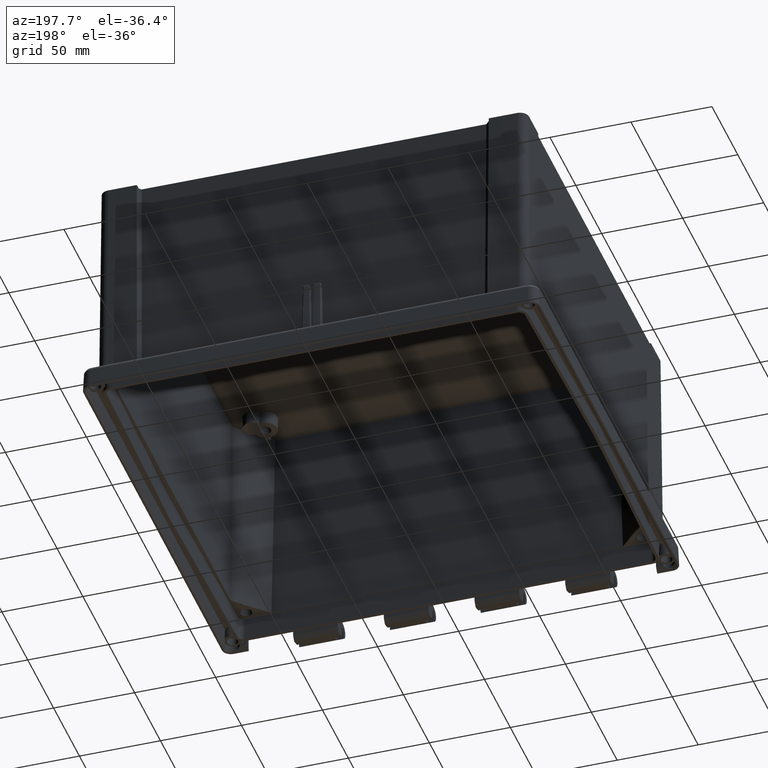
[diagram: clean part render]
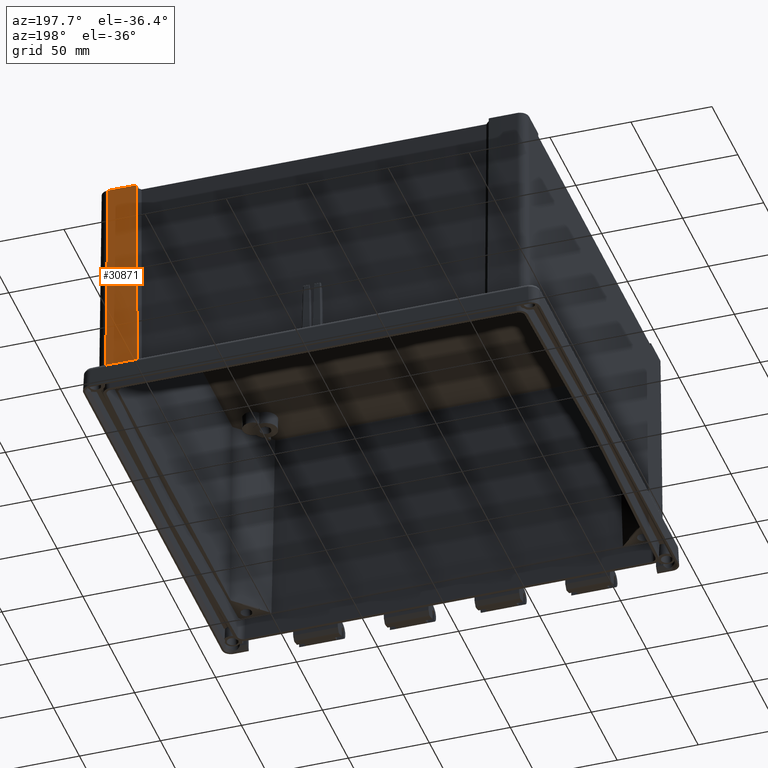
[diagram: same view with one face highlighted and labeled with its STEP entity id]
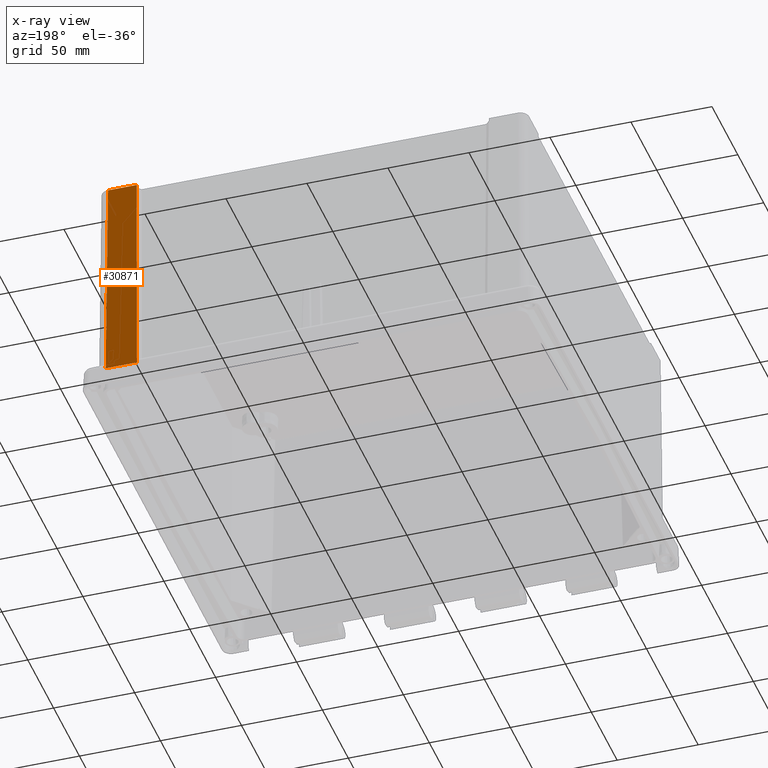
[diagram: x-ray of the same camera — body ghosted, the highlighted face saturated]
A machine part, auxiliary view. The second image highlights one B-rep face of the part: STEP entity #30871.
The next image is the same camera in x-ray: the body ghosted, the highlighted face saturated — about 0% of this face is hidden behind the body in this view.
In plain terms, the highlighted planar face has unit normal (0, -1, -0.0087).
Its self-contained STEP definition (entity closure, byte-faithful):
#17045 = CARTESIAN_POINT ( 'NONE',  ( 126.3032684426439700, 132.2180590194969100, 145.7500000000000000 ) ) ;
#17046 = DIRECTION ( 'NONE',  ( -0.008726203243944054300, -0.008726203243944267600, 0.9999238504775704900 ) ) ;
#17047 = VECTOR ( 'NONE', #17046, 1000.000000000000000 ) ;
#17048 = CARTESIAN_POINT ( 'NONE',  ( 127.4426358398394400, 133.3574264166923900, 15.19142795402333800 ) ) ;
#17049 = LINE ( 'NONE', #17048, #17047 ) ;
#17051 = CARTESIAN_POINT ( 'NONE',  ( 127.4426358398394400, 133.3574264166923900, 15.19142795402333900 ) ) ;
#17109 = DIRECTION ( 'NONE',  ( 0.0000000000000000000, -0.9999619230641713100, -0.008726535498373934700 ) ) ;
#17110 = CARTESIAN_POINT ( 'NONE',  ( 99.80250638222540300, 133.4900000000000100, 0.0000000000000000000 ) ) ;
#17111 = AXIS2_PLACEMENT_3D ( 'NONE', #17110, #17109, #17164 ) ;
#17113 = PLANE ( 'NONE',  #17111 ) ;
#17128 = FACE_OUTER_BOUND ( 'NONE', #30872, .T. ) ;
#17129 = DIRECTION ( 'NONE',  ( -1.000000000000000000, -0.0000000000000000000, -0.0000000000000000000 ) ) ;
#17130 = VECTOR ( 'NONE', #17129, 1000.000000000000000 ) ;
#17131 = CARTESIAN_POINT ( 'NONE',  ( 99.80250638222540300, 132.2180590194969100, 145.7500000000000000 ) ) ;
#17132 = LINE ( 'NONE', #17131, #17130 ) ;
#17164 = DIRECTION ( 'NONE',  ( 0.0000000000000000000, 0.008726535498373934700, -0.9999619230641713100 ) ) ;
#17196 = CARTESIAN_POINT ( 'NONE',  ( 108.6472730217617800, 132.2180590194969100, 145.7500000000000000 ) ) ;
#17365 = DIRECTION ( 'NONE',  ( -0.007996140876366107000, 0.008726256514139295300, -0.9999299546359909900 ) ) ;
#17367 = VECTOR ( 'NONE', #17365, 999.9999999999998900 ) ;
#17368 = CARTESIAN_POINT ( 'NONE',  ( 108.6472730217617600, 132.2180590194969100, 145.7500000000000000 ) ) ;
#17369 = LINE ( 'NONE', #17368, #17367 ) ;
#17371 = CARTESIAN_POINT ( 'NONE',  ( 108.6347002006906900, 132.2298832932866900, 143.7500000000000000 ) ) ;
#17372 = DIRECTION ( 'NONE',  ( 0.003944939861817611800, -0.008726467594535080800, 0.9999541420549285000 ) ) ;
#17373 = VECTOR ( 'NONE', #17372, 1000.000000000000000 ) ;
#17374 = CARTESIAN_POINT ( 'NONE',  ( 108.1349320180529400, 133.3574264166923900, 15.19142795402333600 ) ) ;
#17375 = LINE ( 'NONE', #17374, #17373 ) ;
#17376 = CARTESIAN_POINT ( 'NONE',  ( 108.1349320180529400, 133.3574264166923900, 15.19142795402333800 ) ) ;
#17377 = DIRECTION ( 'NONE',  ( 1.000000000000000000, 0.0000000000000000000, -0.0000000000000000000 ) ) ;
#17378 = VECTOR ( 'NONE', #17377, 1000.000000000000000 ) ;
#17379 = CARTESIAN_POINT ( 'NONE',  ( -1.421085471520200400E-014, 133.3574264166924200, 15.19142795402333400 ) ) ;
#17380 = LINE ( 'NONE', #17379, #17378 ) ;
#30819 = VERTEX_POINT ( 'NONE', #17051 ) ;
#30822 = EDGE_CURVE ( 'NONE', #30819, #30823, #17049, .T. ) ;
#30823 = VERTEX_POINT ( 'NONE', #17045 ) ;
#30870 = EDGE_CURVE ( 'NONE', #30823, #30881, #17132, .T. ) ;
#30871 = ADVANCED_FACE ( 'NONE', ( #17128 ), #17113, .F. ) ;
#30872 = EDGE_LOOP ( 'NONE', ( #30928, #30931, #30934, #30936, #30937 ) ) ;
#30881 = VERTEX_POINT ( 'NONE', #17196 ) ;
#30928 = ORIENTED_EDGE ( 'NONE', *, *, #30929, .F. ) ;
#30929 = EDGE_CURVE ( 'NONE', #30930, #30819, #17380, .T. ) ;
#30930 = VERTEX_POINT ( 'NONE', #17376 ) ;
#30931 = ORIENTED_EDGE ( 'NONE', *, *, #30932, .T. ) ;
#30932 = EDGE_CURVE ( 'NONE', #30930, #30933, #17375, .T. ) ;
#30933 = VERTEX_POINT ( 'NONE', #17371 ) ;
#30934 = ORIENTED_EDGE ( 'NONE', *, *, #30935, .F. ) ;
#30935 = EDGE_CURVE ( 'NONE', #30881, #30933, #17369, .T. ) ;
#30936 = ORIENTED_EDGE ( 'NONE', *, *, #30870, .F. ) ;
#30937 = ORIENTED_EDGE ( 'NONE', *, *, #30822, .F. ) ;